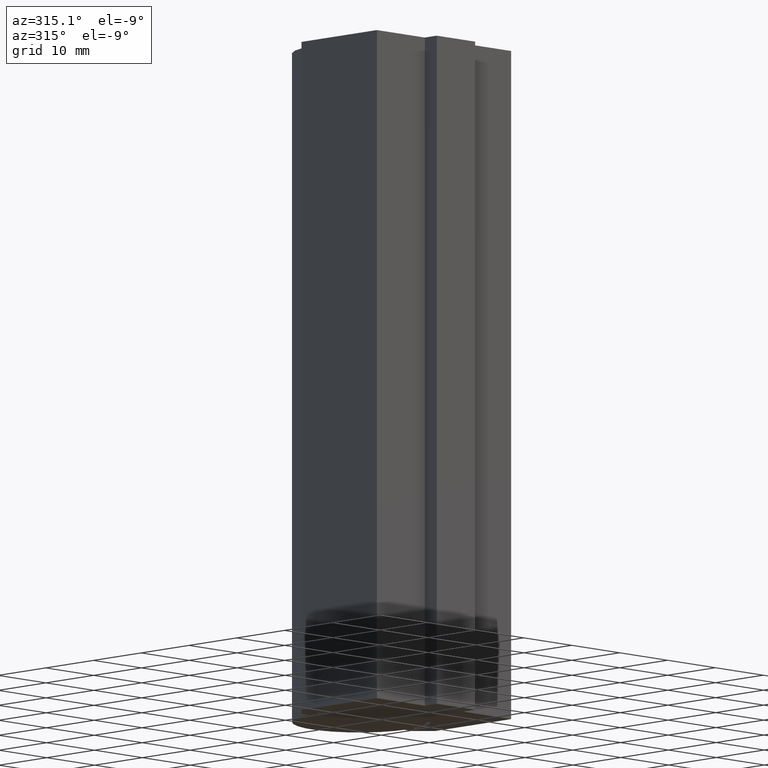
[diagram: clean part render]
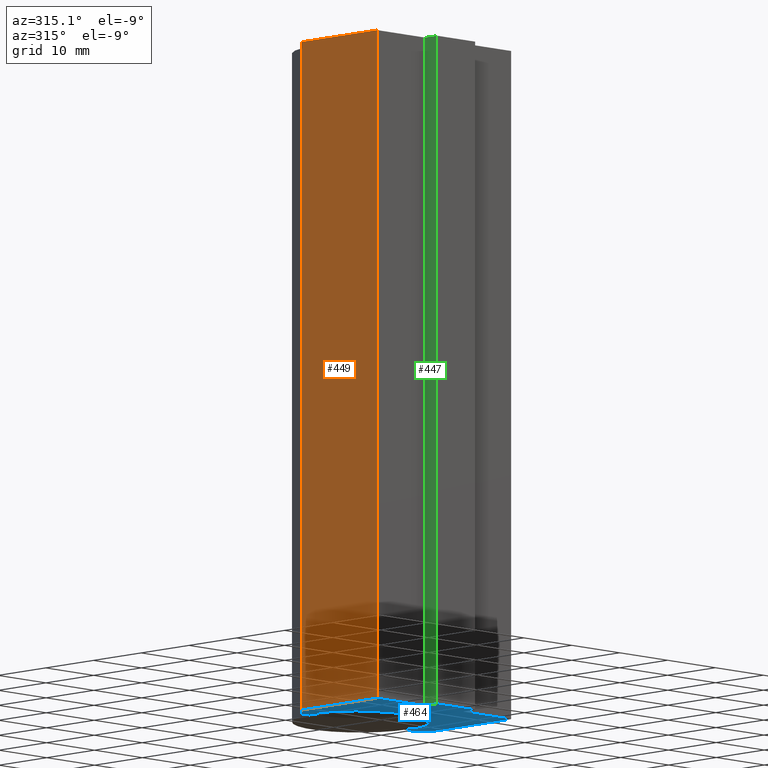
[diagram: same view with three faces highlighted in distinct colors, each labeled with its STEP entity id]
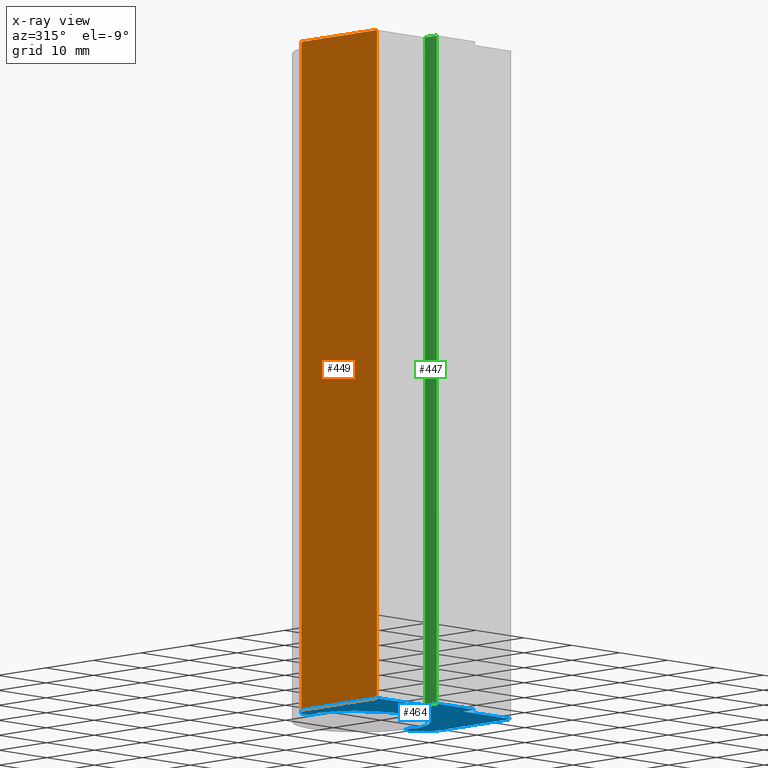
[diagram: x-ray of the same camera — body ghosted, the three highlighted faces saturated]
A machine part, auxiliary view with three faces highlighted in distinct colors.
The next image is the same camera in x-ray (body ghosted, the three faces saturated) — at least one of them is partly hidden behind the body in this view.
Their STEP definitions:

[orange] entity #449 — the highlighted planar face has unit normal (-1, 0, 0).
#37=FACE_OUTER_BOUND('',#62,.T.);
#62=EDGE_LOOP('',(#317,#318,#319,#320));
#98=LINE('',#687,#153);
#100=LINE('',#691,#155);
#101=LINE('',#693,#156);
#102=LINE('',#694,#157);
#153=VECTOR('',#554,10.);
#155=VECTOR('',#558,10.);
#156=VECTOR('',#559,10.);
#157=VECTOR('',#560,10.);
#206=VERTEX_POINT('',#684);
#207=VERTEX_POINT('',#686);
#208=VERTEX_POINT('',#690);
#209=VERTEX_POINT('',#692);
#250=EDGE_CURVE('',#207,#206,#98,.T.);
#252=EDGE_CURVE('',#206,#208,#100,.T.);
#253=EDGE_CURVE('',#209,#208,#101,.T.);
#254=EDGE_CURVE('',#209,#207,#102,.T.);
#317=ORIENTED_EDGE('',*,*,#252,.T.);
#318=ORIENTED_EDGE('',*,*,#253,.F.);
#319=ORIENTED_EDGE('',*,*,#254,.T.);
#320=ORIENTED_EDGE('',*,*,#250,.T.);
#428=PLANE('',#498);
#449=ADVANCED_FACE('',(#37),#428,.T.);
#498=AXIS2_PLACEMENT_3D('',#689,#556,#557);
#554=DIRECTION('',(0.,0.,1.));
#556=DIRECTION('center_axis',(-1.,0.,0.));
#557=DIRECTION('ref_axis',(0.,0.,1.));
#558=DIRECTION('',(0.,1.,0.));
#559=DIRECTION('',(0.,0.,1.));
#560=DIRECTION('',(0.,-1.,0.));
#684=CARTESIAN_POINT('',(-27.8756867600048,3.00251171274873,100.));
#686=CARTESIAN_POINT('',(-27.8756867600048,3.00251171274873,0.));
#687=CARTESIAN_POINT('',(-27.8756867600048,3.00251171274873,0.));
#689=CARTESIAN_POINT('Origin',(-27.8756867600048,3.00251171274873,0.));
#690=CARTESIAN_POINT('',(-27.8756867600048,18.8025117127487,100.));
#691=CARTESIAN_POINT('',(-27.8756867600048,18.8025117127487,100.));
#692=CARTESIAN_POINT('',(-27.8756867600048,18.8025117127487,0.));
#693=CARTESIAN_POINT('',(-27.8756867600048,18.8025117127487,0.));
#694=CARTESIAN_POINT('',(-27.8756867600048,18.8025117127487,0.));

[blue] entity #464 — the highlighted planar face has unit normal (0, 0, 1).
#21=CIRCLE('',#504,10.5);
#23=CIRCLE('',#508,10.);
#25=CIRCLE('',#512,10.5);
#52=FACE_OUTER_BOUND('',#77,.T.);
#77=EDGE_LOOP('',(#377,#378,#379,#380,#381,#382,#383,#384,#385,#386,#387,
#388,#389,#390,#391,#392,#393,#394,#395,#396));
#82=LINE('',#653,#137);
#86=LINE('',#662,#141);
#92=LINE('',#675,#147);
#96=LINE('',#682,#151);
#99=LINE('',#688,#154);
#102=LINE('',#694,#157);
#105=LINE('',#700,#160);
#107=LINE('',#703,#162);
#110=LINE('',#709,#165);
#114=LINE('',#721,#169);
#118=LINE('',#733,#173);
#121=LINE('',#742,#176);
#124=LINE('',#748,#179);
#127=LINE('',#754,#182);
#130=LINE('',#760,#185);
#133=LINE('',#766,#188);
#135=LINE('',#769,#190);
#137=VECTOR('',#530,10.);
#141=VECTOR('',#536,10.);
#147=VECTOR('',#544,10.);
#151=VECTOR('',#550,10.);
#154=VECTOR('',#555,10.);
#157=VECTOR('',#560,10.);
#160=VECTOR('',#565,10.);
#162=VECTOR('',#569,10.);
#165=VECTOR('',#574,10.);
#169=VECTOR('',#586,10.);
#173=VECTOR('',#598,10.);
#176=VECTOR('',#609,10.);
#179=VECTOR('',#614,10.);
#182=VECTOR('',#619,10.);
#185=VECTOR('',#624,10.);
#188=VECTOR('',#629,10.);
#190=VECTOR('',#633,10.);
#192=VERTEX_POINT('',#651);
#193=VERTEX_POINT('',#652);
#196=VERTEX_POINT('',#660);
#197=VERTEX_POINT('',#661);
#202=VERTEX_POINT('',#672);
#203=VERTEX_POINT('',#674);
#205=VERTEX_POINT('',#680);
#207=VERTEX_POINT('',#686);
#209=VERTEX_POINT('',#692);
#211=VERTEX_POINT('',#698);
#213=VERTEX_POINT('',#707);
#215=VERTEX_POINT('',#713);
#217=VERTEX_POINT('',#719);
#219=VERTEX_POINT('',#725);
#221=VERTEX_POINT('',#731);
#223=VERTEX_POINT('',#737);
#225=VERTEX_POINT('',#746);
#227=VERTEX_POINT('',#752);
#229=VERTEX_POINT('',#758);
#231=VERTEX_POINT('',#764);
#234=EDGE_CURVE('',#192,#193,#82,.T.);
#238=EDGE_CURVE('',#196,#197,#86,.T.);
#244=EDGE_CURVE('',#202,#203,#92,.T.);
#248=EDGE_CURVE('',#205,#202,#96,.T.);
#251=EDGE_CURVE('',#207,#205,#99,.T.);
#254=EDGE_CURVE('',#209,#207,#102,.T.);
#257=EDGE_CURVE('',#211,#209,#105,.T.);
#259=EDGE_CURVE('',#211,#192,#107,.T.);
#262=EDGE_CURVE('',#213,#193,#110,.T.);
#265=EDGE_CURVE('',#215,#213,#21,.T.);
#268=EDGE_CURVE('',#217,#215,#114,.T.);
#271=EDGE_CURVE('',#219,#217,#23,.T.);
#274=EDGE_CURVE('',#221,#219,#118,.T.);
#277=EDGE_CURVE('',#223,#221,#25,.T.);
#279=EDGE_CURVE('',#196,#223,#121,.T.);
#282=EDGE_CURVE('',#225,#197,#124,.T.);
#285=EDGE_CURVE('',#227,#225,#127,.T.);
#288=EDGE_CURVE('',#229,#227,#130,.T.);
#291=EDGE_CURVE('',#231,#229,#133,.T.);
#293=EDGE_CURVE('',#203,#231,#135,.T.);
#377=ORIENTED_EDGE('',*,*,#244,.F.);
#378=ORIENTED_EDGE('',*,*,#248,.F.);
#379=ORIENTED_EDGE('',*,*,#251,.F.);
#380=ORIENTED_EDGE('',*,*,#254,.F.);
#381=ORIENTED_EDGE('',*,*,#257,.F.);
#382=ORIENTED_EDGE('',*,*,#259,.T.);
#383=ORIENTED_EDGE('',*,*,#234,.T.);
#384=ORIENTED_EDGE('',*,*,#262,.F.);
#385=ORIENTED_EDGE('',*,*,#265,.F.);
#386=ORIENTED_EDGE('',*,*,#268,.F.);
#387=ORIENTED_EDGE('',*,*,#271,.F.);
#388=ORIENTED_EDGE('',*,*,#274,.F.);
#389=ORIENTED_EDGE('',*,*,#277,.F.);
#390=ORIENTED_EDGE('',*,*,#279,.F.);
#391=ORIENTED_EDGE('',*,*,#238,.T.);
#392=ORIENTED_EDGE('',*,*,#282,.F.);
#393=ORIENTED_EDGE('',*,*,#285,.F.);
#394=ORIENTED_EDGE('',*,*,#288,.F.);
#395=ORIENTED_EDGE('',*,*,#291,.F.);
#396=ORIENTED_EDGE('',*,*,#293,.F.);
#440=PLANE('',#519);
#464=ADVANCED_FACE('',(#52),#440,.F.);
#504=AXIS2_PLACEMENT_3D('',#715,#580,#581);
#508=AXIS2_PLACEMENT_3D('',#727,#592,#593);
#512=AXIS2_PLACEMENT_3D('',#739,#604,#605);
#519=AXIS2_PLACEMENT_3D('',#770,#634,#635);
#530=DIRECTION('',(-0.0746259367218186,-0.997211597189078,0.));
#536=DIRECTION('',(-0.0746259367218233,0.997211597189077,0.));
#544=DIRECTION('',(1.,6.59194920871187E-16,0.));
#550=DIRECTION('',(0.,-1.,0.));
#555=DIRECTION('',(1.,1.66533453693773E-16,0.));
#560=DIRECTION('',(0.,-1.,0.));
#565=DIRECTION('',(-0.707106781186547,-0.707106781186548,0.));
#569=DIRECTION('',(1.,0.,0.));
#574=DIRECTION('',(0.990030674365584,0.140851921588688,0.));
#580=DIRECTION('center_axis',(0.,0.,-1.));
#581=DIRECTION('ref_axis',(0.990030674365585,0.140851921588688,0.));
#586=DIRECTION('',(-0.725000000000012,-0.688748865697783,0.));
#592=DIRECTION('center_axis',(0.,0.,-1.));
#593=DIRECTION('ref_axis',(0.724999999999999,0.688748865697796,0.));
#598=DIRECTION('',(-0.724999999999997,0.688748865697798,0.));
#604=DIRECTION('center_axis',(0.,0.,-1.));
#605=DIRECTION('ref_axis',(-0.725,0.688748865697795,0.));
#609=DIRECTION('',(0.990030674365584,-0.140851921588689,0.));
#614=DIRECTION('',(-1.,2.92545758932076E-15,0.));
#619=DIRECTION('',(-0.707106781186547,0.707106781186548,0.));
#624=DIRECTION('',(-5.62138240316535E-16,1.,0.));
#629=DIRECTION('',(1.,6.66133814775094E-16,0.));
#633=DIRECTION('',(-8.88178419700125E-16,1.,0.));
#634=DIRECTION('center_axis',(0.,0.,1.));
#635=DIRECTION('ref_axis',(1.,0.,0.));
#651=CARTESIAN_POINT('',(-23.6256867600048,21.3025117127487,0.));
#652=CARTESIAN_POINT('',(-23.7759935036606,19.2939924968619,0.));
#653=CARTESIAN_POINT('',(-23.7110585286852,20.1617056935492,-8.88178419700125E-15));
#660=CARTESIAN_POINT('',(-3.97538001634891,19.2939924968619,0.));
#661=CARTESIAN_POINT('',(-4.12568676000476,21.3025117127487,0.));
#662=CARTESIAN_POINT('',(-4.11546836315227,21.1659653014927,-8.88178419700125E-15));
#672=CARTESIAN_POINT('',(-17.8756867600048,0.502511712748733,0.));
#674=CARTESIAN_POINT('',(-9.87568676000476,0.502511712748736,0.));
#675=CARTESIAN_POINT('',(-13.8756867600048,0.502511712748733,0.));
#680=CARTESIAN_POINT('',(-17.8756867600048,3.00251171274873,0.));
#682=CARTESIAN_POINT('',(-17.8756867600048,3.00251171274873,0.));
#686=CARTESIAN_POINT('',(-27.8756867600048,3.00251171274873,0.));
#688=CARTESIAN_POINT('',(-27.8756867600048,3.00251171274873,0.));
#692=CARTESIAN_POINT('',(-27.8756867600048,18.8025117127487,0.));
#694=CARTESIAN_POINT('',(-27.8756867600048,18.8025117127487,0.));
#698=CARTESIAN_POINT('',(-25.3756867600048,21.3025117127487,0.));
#700=CARTESIAN_POINT('',(-25.3756867600048,21.3025117127487,0.));
#703=CARTESIAN_POINT('',(-18.7506867600048,21.3025117127487,0.));
#707=CARTESIAN_POINT('',(-24.2710088408434,19.2235665360675,0.));
#709=CARTESIAN_POINT('',(-24.2710088408434,19.2235665360675,0.));
#713=CARTESIAN_POINT('',(-21.4881867600048,13.4706486229219,0.));
#715=CARTESIAN_POINT('Origin',(-13.8756867600048,20.7025117127487,0.));
#719=CARTESIAN_POINT('',(-21.1256867600048,13.8150230557708,0.));
#721=CARTESIAN_POINT('',(-21.1256867600048,13.8150230557708,0.));
#725=CARTESIAN_POINT('',(-6.62568676000476,13.8150230557708,0.));
#727=CARTESIAN_POINT('Origin',(-13.8756867600048,20.7025117127487,0.));
#731=CARTESIAN_POINT('',(-6.26318676000476,13.4706486229219,0.));
#733=CARTESIAN_POINT('',(-6.26318676000476,13.4706486229219,0.));
#737=CARTESIAN_POINT('',(-3.48036467916612,19.2235665360675,0.));
#739=CARTESIAN_POINT('Origin',(-13.8756867600048,20.7025117127487,0.));
#742=CARTESIAN_POINT('',(-3.97538001634891,19.2939924968619,0.));
#746=CARTESIAN_POINT('',(-2.37568676000476,21.3025117127487,0.));
#748=CARTESIAN_POINT('',(-2.37568676000476,21.3025117127487,0.));
#752=CARTESIAN_POINT('',(0.124313239995235,18.8025117127487,0.));
#754=CARTESIAN_POINT('',(0.124313239995235,18.8025117127487,0.));
#758=CARTESIAN_POINT('',(0.124313239995244,3.00251171274874,0.));
#760=CARTESIAN_POINT('',(0.124313239995244,3.00251171274874,0.));
#764=CARTESIAN_POINT('',(-9.87568676000476,3.00251171274874,0.));
#766=CARTESIAN_POINT('',(-9.87568676000476,3.00251171274874,0.));
#769=CARTESIAN_POINT('',(-9.87568676000476,0.502511712748736,0.));
#770=CARTESIAN_POINT('Origin',(-13.8756867600048,10.398202853286,0.));

[green] entity #447 — the highlighted planar face has unit normal (-1, 0, 0).
#35=FACE_OUTER_BOUND('',#60,.T.);
#60=EDGE_LOOP('',(#309,#310,#311,#312));
#91=LINE('',#673,#146);
#94=LINE('',#679,#149);
#95=LINE('',#681,#150);
#96=LINE('',#682,#151);
#146=VECTOR('',#543,10.);
#149=VECTOR('',#548,10.);
#150=VECTOR('',#549,10.);
#151=VECTOR('',#550,10.);
#201=VERTEX_POINT('',#670);
#202=VERTEX_POINT('',#672);
#204=VERTEX_POINT('',#678);
#205=VERTEX_POINT('',#680);
#243=EDGE_CURVE('',#202,#201,#91,.T.);
#246=EDGE_CURVE('',#201,#204,#94,.T.);
#247=EDGE_CURVE('',#205,#204,#95,.T.);
#248=EDGE_CURVE('',#205,#202,#96,.T.);
#309=ORIENTED_EDGE('',*,*,#246,.T.);
#310=ORIENTED_EDGE('',*,*,#247,.F.);
#311=ORIENTED_EDGE('',*,*,#248,.T.);
#312=ORIENTED_EDGE('',*,*,#243,.T.);
#426=PLANE('',#496);
#447=ADVANCED_FACE('',(#35),#426,.T.);
#496=AXIS2_PLACEMENT_3D('',#677,#546,#547);
#543=DIRECTION('',(0.,0.,1.));
#546=DIRECTION('center_axis',(-1.,0.,0.));
#547=DIRECTION('ref_axis',(0.,0.,1.));
#548=DIRECTION('',(0.,1.,0.));
#549=DIRECTION('',(0.,0.,1.));
#550=DIRECTION('',(0.,-1.,0.));
#670=CARTESIAN_POINT('',(-17.8756867600048,0.502511712748733,100.));
#672=CARTESIAN_POINT('',(-17.8756867600048,0.502511712748733,0.));
#673=CARTESIAN_POINT('',(-17.8756867600048,0.502511712748733,0.));
#677=CARTESIAN_POINT('Origin',(-17.8756867600048,0.502511712748733,0.));
#678=CARTESIAN_POINT('',(-17.8756867600048,3.00251171274873,100.));
#679=CARTESIAN_POINT('',(-17.8756867600048,3.00251171274873,100.));
#680=CARTESIAN_POINT('',(-17.8756867600048,3.00251171274873,0.));
#681=CARTESIAN_POINT('',(-17.8756867600048,3.00251171274873,0.));
#682=CARTESIAN_POINT('',(-17.8756867600048,3.00251171274873,0.));